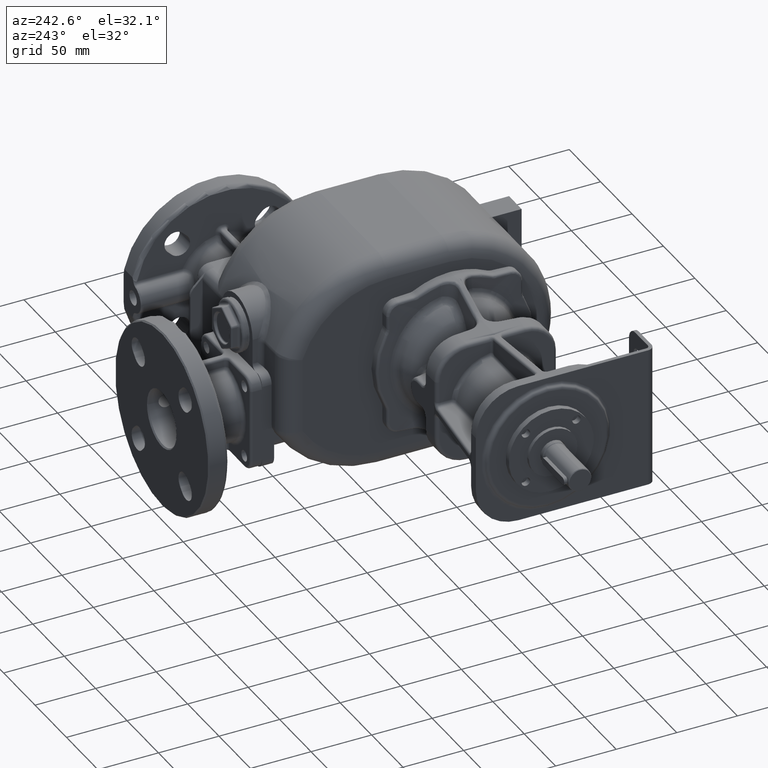
[diagram: clean part render]
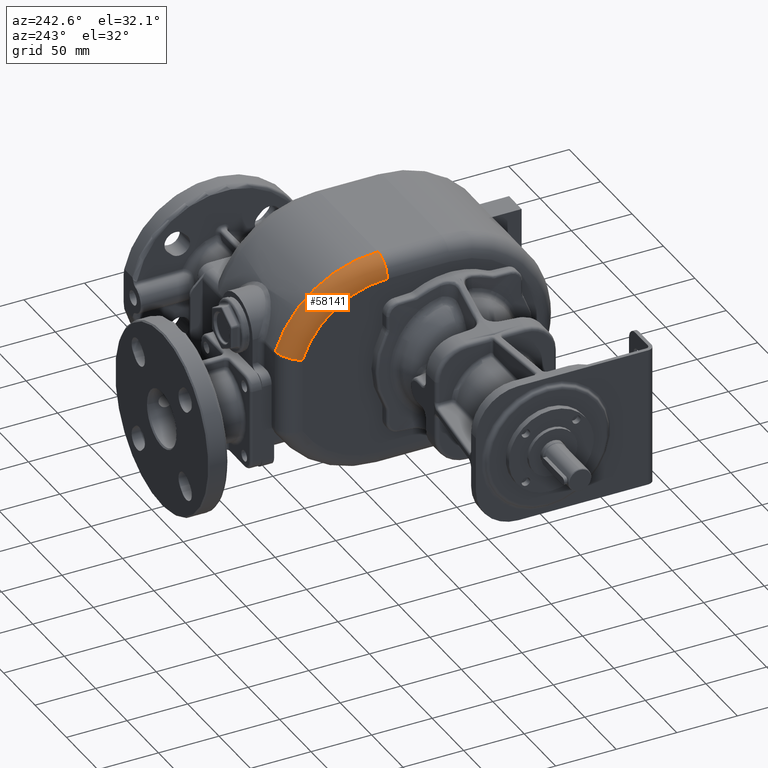
[diagram: same view with one face highlighted and labeled with its STEP entity id]
A machine part, auxiliary view. The second image highlights one B-rep face of the part: STEP entity #58141.
In plain terms, the highlighted toroidal blend (fillet) surface has major radius 74 mm and minor (blend) radius 15 mm.
Its self-contained STEP definition (entity closure, byte-faithful):
#5429=CARTESIAN_POINT('',(-5.5E1,1.419545588630E2,0.E0));
#5430=DIRECTION('',(-1.E0,0.E0,0.E0));
#5431=DIRECTION('',(0.E0,0.E0,1.E0));
#5432=AXIS2_PLACEMENT_3D('',#5429,#5430,#5431);
#7755=CARTESIAN_POINT('',(-7.E1,1.419545588630E2,0.E0));
#7756=DIRECTION('',(-1.E0,0.E0,0.E0));
#7757=DIRECTION('',(0.E0,0.E0,1.E0));
#7758=AXIS2_PLACEMENT_3D('',#7755,#7756,#7757);
#22081=CARTESIAN_POINT('',(-5.499784198082E1,2.266094314280E2,
2.746911945026E1));
#22082=CARTESIAN_POINT('',(-5.519935615328E1,2.266094332273E2,
2.746911386782E1));
#22083=CARTESIAN_POINT('',(-5.560211616624E1,2.266015967309E2,
2.746725109182E1));
#22084=CARTESIAN_POINT('',(-5.620385645585E1,2.265661528567E2,
2.745883532637E1));
#22085=CARTESIAN_POINT('',(-5.680408511676E1,2.265071118147E2,
2.744485776278E1));
#22086=CARTESIAN_POINT('',(-5.740129730143E1,2.264245678852E2,
2.742529933784E1));
#22087=CARTESIAN_POINT('',(-5.799463533413E1,2.263186809252E2,
2.740013893446E1));
#22088=CARTESIAN_POINT('',(-5.858315648553E1,2.261895960535E2,
2.736946219400E1));
#22089=CARTESIAN_POINT('',(-5.916599471967E1,2.260374981993E2,
2.733330827629E1));
#22090=CARTESIAN_POINT('',(-5.974228596629E1,2.258625965332E2,
2.729171095303E1));
#22091=CARTESIAN_POINT('',(-6.031107493234E1,2.256651689202E2,
2.724469188517E1));
#22092=CARTESIAN_POINT('',(-6.087137621013E1,2.254455494093E2,
2.719229036625E1));
#22093=CARTESIAN_POINT('',(-6.142221952417E1,2.252040860830E2,
2.713465642843E1));
#22094=CARTESIAN_POINT('',(-6.196266853256E1,2.249411947021E2,
2.707185270692E1));
#22095=CARTESIAN_POINT('',(-6.249179340643E1,2.246573404120E2,
2.700395533137E1));
#22096=CARTESIAN_POINT('',(-6.300878527381E1,2.243529832517E2,
2.693100062551E1));
#22097=CARTESIAN_POINT('',(-6.351288438799E1,2.240285748882E2,
2.685305593077E1));
#22098=CARTESIAN_POINT('',(-6.400330164428E1,2.236845754641E2,
2.677032585195E1));
#22099=CARTESIAN_POINT('',(-6.447919857779E1,2.233215738224E2,
2.668288681942E1));
#22100=CARTESIAN_POINT('',(-6.493977198413E1,2.229401831425E2,
2.659084419621E1));
#22101=CARTESIAN_POINT('',(-6.538428109657E1,2.225410319431E2,
2.649426240159E1));
#22102=CARTESIAN_POINT('',(-6.581201594087E1,2.221247489613E2,
2.639327059156E1));
#22103=CARTESIAN_POINT('',(-6.622227430585E1,2.216919658548E2,
2.628813030528E1));
#22104=CARTESIAN_POINT('',(-6.661437461130E1,2.212434098909E2,
2.617893086003E1));
#22105=CARTESIAN_POINT('',(-6.698766652762E1,2.207798233723E2,
2.606580294340E1));
#22106=CARTESIAN_POINT('',(-6.734154580998E1,2.203019687015E2,
2.594883506873E1));
#22107=CARTESIAN_POINT('',(-6.767544484688E1,2.198105921420E2,
2.582819403199E1));
#22108=CARTESIAN_POINT('',(-6.798878384085E1,2.193064901290E2,
2.570417445589E1));
#22109=CARTESIAN_POINT('',(-6.828099412348E1,2.187905972259E2,
2.557691284017E1));
#22110=CARTESIAN_POINT('',(-6.855157689174E1,2.182638238284E2,
2.544658973308E1));
#22111=CARTESIAN_POINT('',(-6.880015051380E1,2.177269547297E2,
2.531329860556E1));
#22112=CARTESIAN_POINT('',(-6.902634982472E1,2.171807323013E2,
2.517726904859E1));
#22113=CARTESIAN_POINT('',(-6.922975510197E1,2.166260875679E2,
2.503887035646E1));
#22114=CARTESIAN_POINT('',(-6.940998191325E1,2.160641220473E2,
2.489824043700E1));
#22115=CARTESIAN_POINT('',(-6.956673054416E1,2.154958643530E2,
2.475556693065E1));
#22116=CARTESIAN_POINT('',(-6.969979174493E1,2.149221900169E2,
2.461094867796E1));
#22117=CARTESIAN_POINT('',(-6.980897359541E1,2.143439698596E2,
2.446459334933E1));
#22118=CARTESIAN_POINT('',(-6.989413484948E1,2.137618852842E2,
2.431689338025E1));
#22119=CARTESIAN_POINT('',(-6.995511647585E1,2.131767134097E2,
2.416792323927E1));
#22120=CARTESIAN_POINT('',(-6.999185208894E1,2.125891040920E2,
2.401837572605E1));
#22121=CARTESIAN_POINT('',(-6.999992873254E1,2.121964953194E2,
2.391731160197E1));
#22122=CARTESIAN_POINT('',(-7.E1,2.120000000026E2,2.386705210013E1));
#22167=CARTESIAN_POINT('',(-5.5E1,1.419545588630E2,7.4E1));
#22168=DIRECTION('',(0.E0,1.E0,0.E0));
#22169=DIRECTION('',(-1.E0,0.E0,0.E0));
#22170=AXIS2_PLACEMENT_3D('',#22167,#22168,#22169);
#23657=CARTESIAN_POINT('',(-7.E1,2.120000000006E2,2.386703532596E1));
#23659=VERTEX_POINT('',#23657);
#23674=CARTESIAN_POINT('',(-7.E1,1.419545588630E2,7.4E1));
#23676=VERTEX_POINT('',#23674);
#23677=CARTESIAN_POINT('',(-5.5E1,1.419545588630E2,8.9E1));
#23678=VERTEX_POINT('',#23677);
#23679=CARTESIAN_POINT('',(-5.5E1,2.266094300747E2,2.746912412384E1));
#23680=VERTEX_POINT('',#23679);
#58129=CARTESIAN_POINT('',(-5.5E1,1.419545588630E2,0.E0));
#58130=DIRECTION('',(-1.E0,0.E0,0.E0));
#58131=DIRECTION('',(0.E0,-5.891460810663E-1,-8.080265436013E-1));
#58132=AXIS2_PLACEMENT_3D('',#58129,#58130,#58131);
#58133=TOROIDAL_SURFACE('',#58132,7.4E1,1.5E1);
#58134=ORIENTED_EDGE('',*,*,#32331,.F.);
#58136=ORIENTED_EDGE('',*,*,#58135,.F.);
#58137=ORIENTED_EDGE('',*,*,#35271,.T.);
#58138=ORIENTED_EDGE('',*,*,#58123,.F.);
#58139=EDGE_LOOP('',(#58134,#58136,#58137,#58138));
#58140=FACE_OUTER_BOUND('',#58139,.F.);
#58141=ADVANCED_FACE('',(#58140),#58133,.T.);
#5433=CIRCLE('',#5432,8.9E1);
#7759=CIRCLE('',#7758,7.4E1);
#22123=B_SPLINE_CURVE_WITH_KNOTS('',3,(#22081,#22082,#22083,#22084,#22085,
#22086,#22087,#22088,#22089,#22090,#22091,#22092,#22093,#22094,#22095,#22096,
#22097,#22098,#22099,#22100,#22101,#22102,#22103,#22104,#22105,#22106,#22107,
#22108,#22109,#22110,#22111,#22112,#22113,#22114,#22115,#22116,#22117,#22118,
#22119,#22120,#22121,#22122),.UNSPECIFIED.,.F.,.F.,(4,1,1,1,1,1,1,1,1,1,1,1,1,1,
1,1,1,1,1,1,1,1,1,1,1,1,1,1,1,1,1,1,1,1,1,1,1,1,1,4),(0.E0,2.564102564103E-2,
5.128205128205E-2,7.692307692308E-2,1.025641025641E-1,1.282051282051E-1,
1.538461538462E-1,1.794871794872E-1,2.051282051282E-1,2.307692307692E-1,
2.564102564103E-1,2.820512820513E-1,3.076923076923E-1,3.333333333333E-1,
3.589743589744E-1,3.846153846154E-1,4.102564102564E-1,4.358974358974E-1,
4.615384615385E-1,4.871794871795E-1,5.128205128205E-1,5.384615384615E-1,
5.641025641026E-1,5.897435897436E-1,6.153846153846E-1,6.410256410256E-1,
6.666666666667E-1,6.923076923077E-1,7.179487179487E-1,7.435897435897E-1,
7.692307692308E-1,7.948717948718E-1,8.205128205128E-1,8.461538461538E-1,
8.717948717949E-1,8.974358974359E-1,9.230769230769E-1,9.487179487179E-1,
9.743589743590E-1,1.E0),.UNSPECIFIED.);
#22171=CIRCLE('',#22170,1.5E1);
#32331=EDGE_CURVE('',#23678,#23680,#5433,.T.);
#35271=EDGE_CURVE('',#23676,#23659,#7759,.T.);
#58123=EDGE_CURVE('',#23680,#23659,#22123,.T.);
#58135=EDGE_CURVE('',#23676,#23678,#22171,.T.);